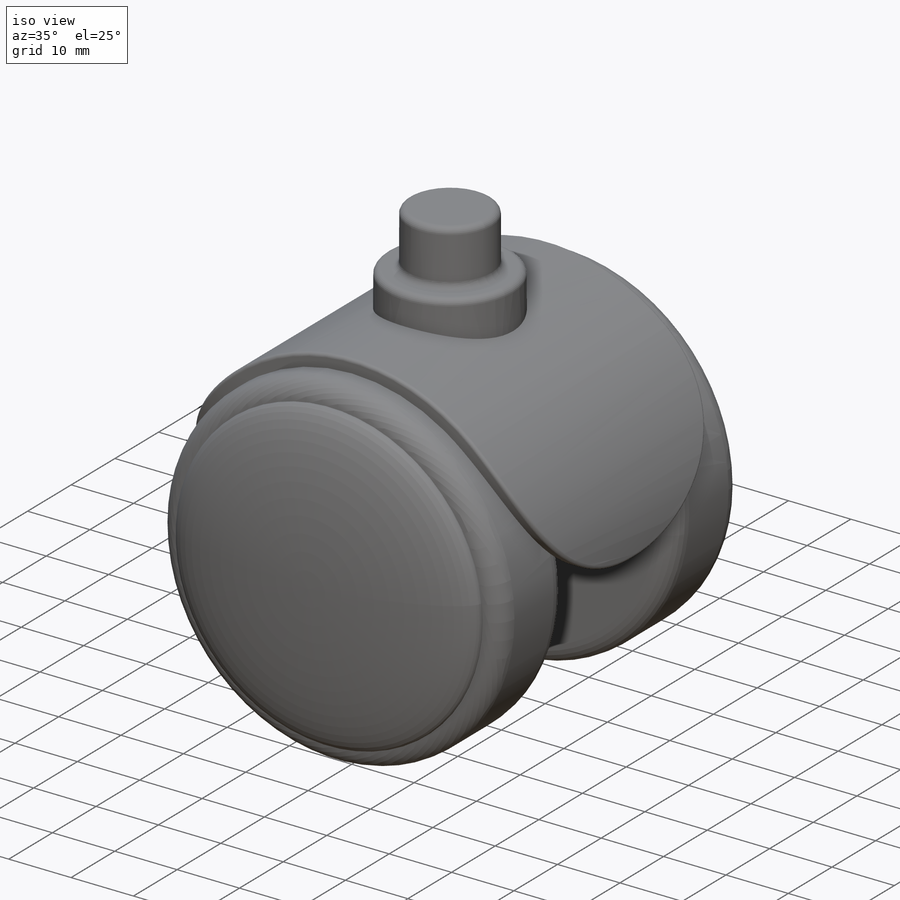
[diagram: iso view]
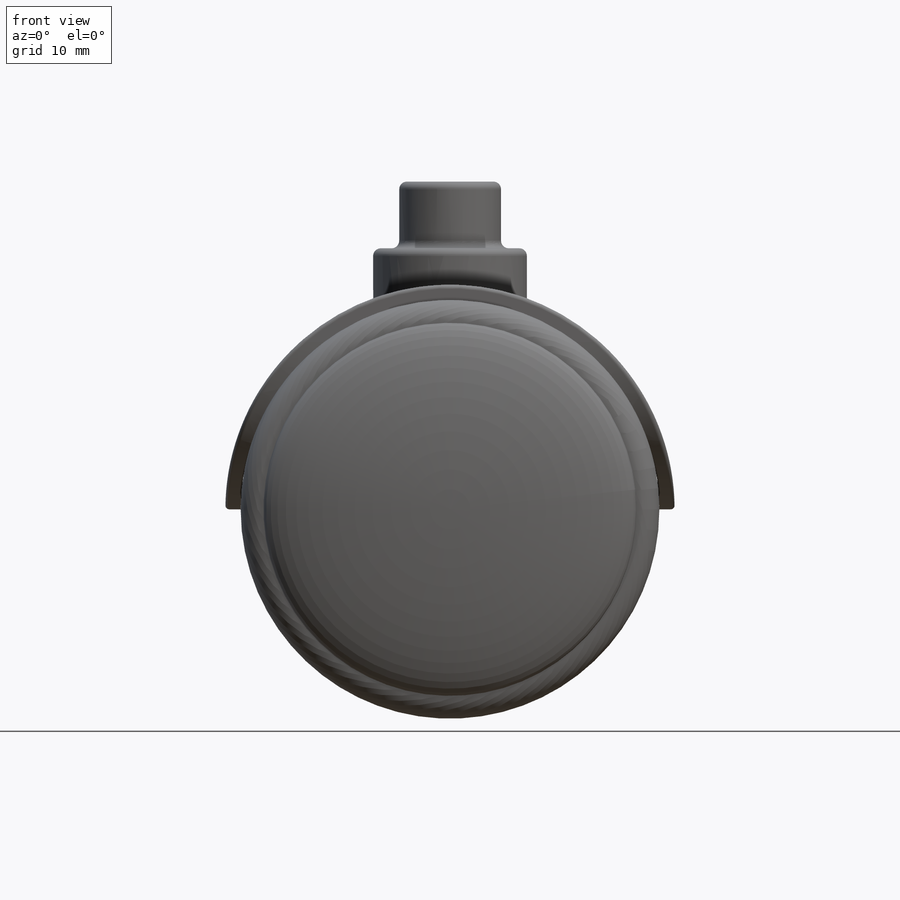
[diagram: front view]
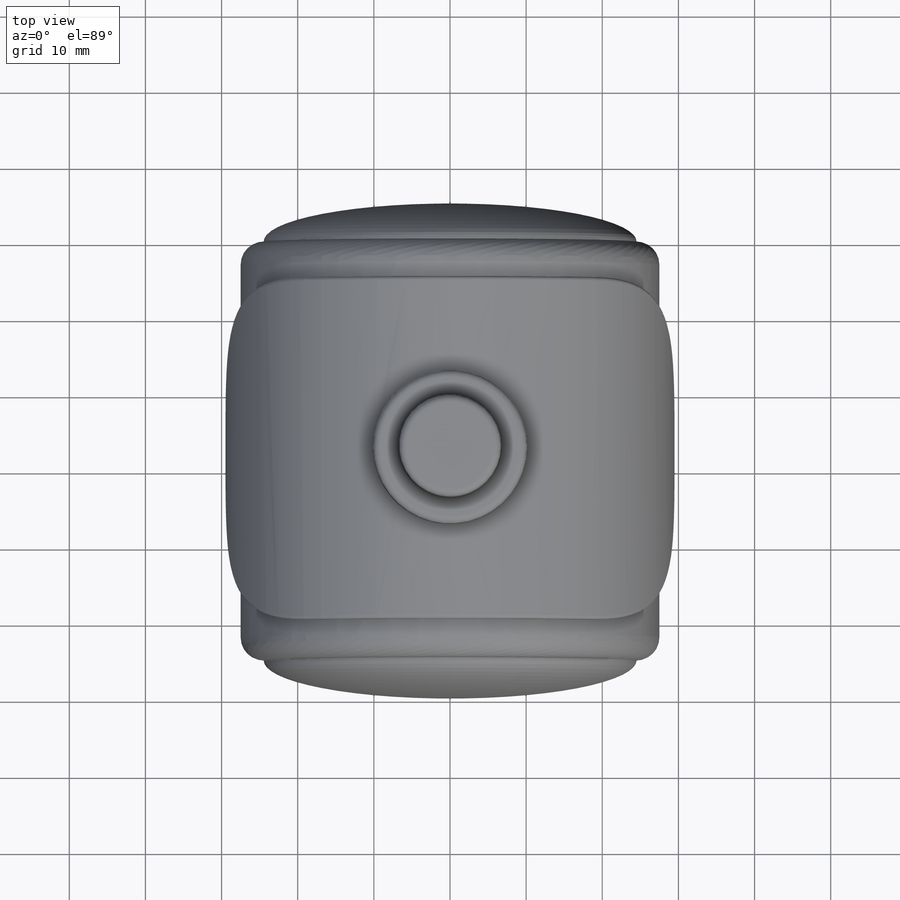
[diagram: top view]
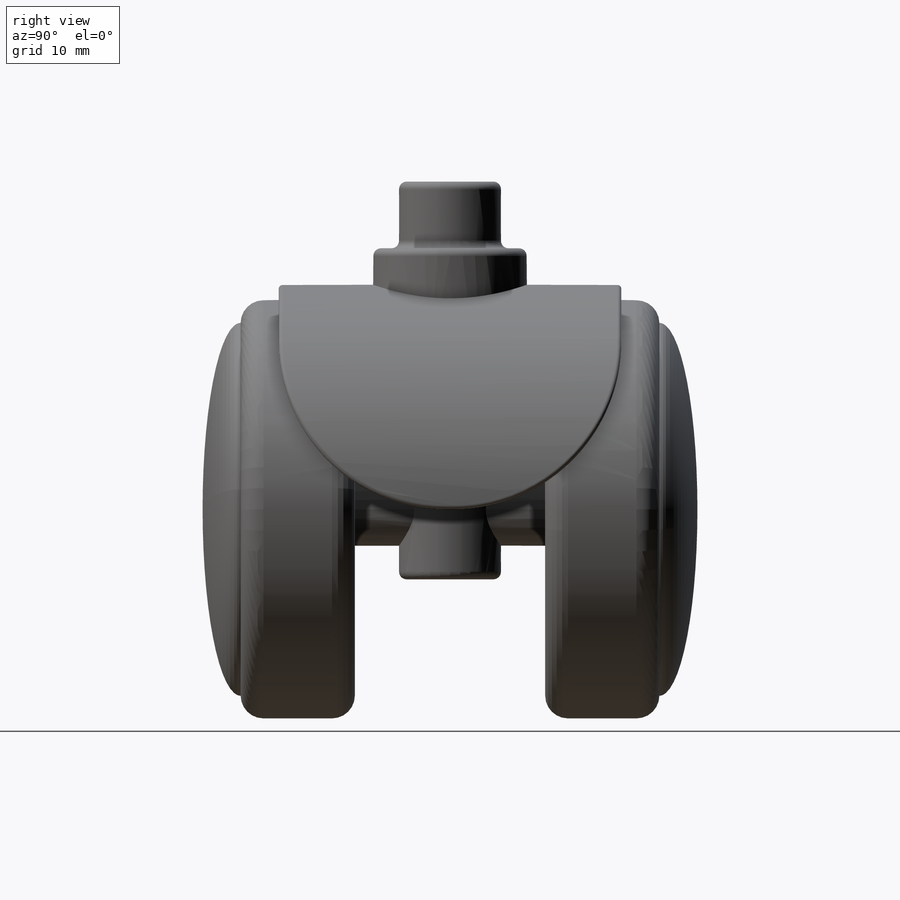
[diagram: right view]
SOLIDWORKS PART (.sldprt)
format: sldprt  version: not decoded by parser v0  size: 484,352 bytes
history: native  units: mm
features: sketch x6, extrude x3, fillet x3, material x1, dome x1, plane x1, mirror x1, cut_revolve x1, revolve x1, cut_extrude x1 (+13 scaffold rows collapsed)
feature tree (32):
  scaffold x13  (default folders/planes/origin — collapsed)
  material  "Material <not specified>"
  sketch  "Sketch1"  dims[D1=55.0mm]
  extrude  "Boss-Extrude1"  Depth=15mm
  fillet  "Fillet1"  Radius=3mm
  dome  "Dome1"
  plane  "Plane1"  Offset=12.5mm
  mirror  "Mirror2"
  sketch  "Sketch4"  dims[D1=2.0mm]
  extrude  "Boss-Extrude2"  Depth=45mm
  fillet  "Fillet2"  Radius=22mm
  fillet  "Fillet3"  Radius=0.5mm
  sketch  "Sketch5"  dims[D1=1.0mm]
  cut_revolve  "Cut-Revolve1"  Angle=360deg
  revolve  "Revolve2"  [1 undecoded]
  sketch  "Sketch5<2>"  dims[D1=360.0deg]
  sketch  "Sketch6"
  cut_extrude  "Cut-Extrude1"  Depth=15mm
  extrude  "Boss-Extrude3"  [1 undecoded]
  sketch  "Sketch6<2>"  dims[D1=25.0mm]
decode coverage: 12 of 17 modeling features carry decoded parameters
note: 2 parameter values undecoded
note: suppression state not decoded; provenance and decode notes live in map.json
